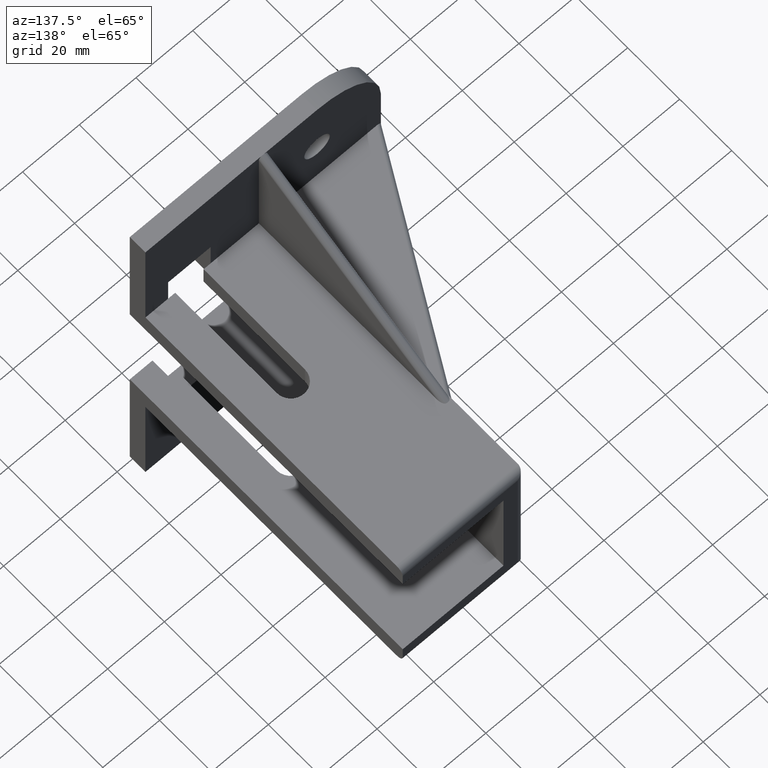
[diagram: clean part render]
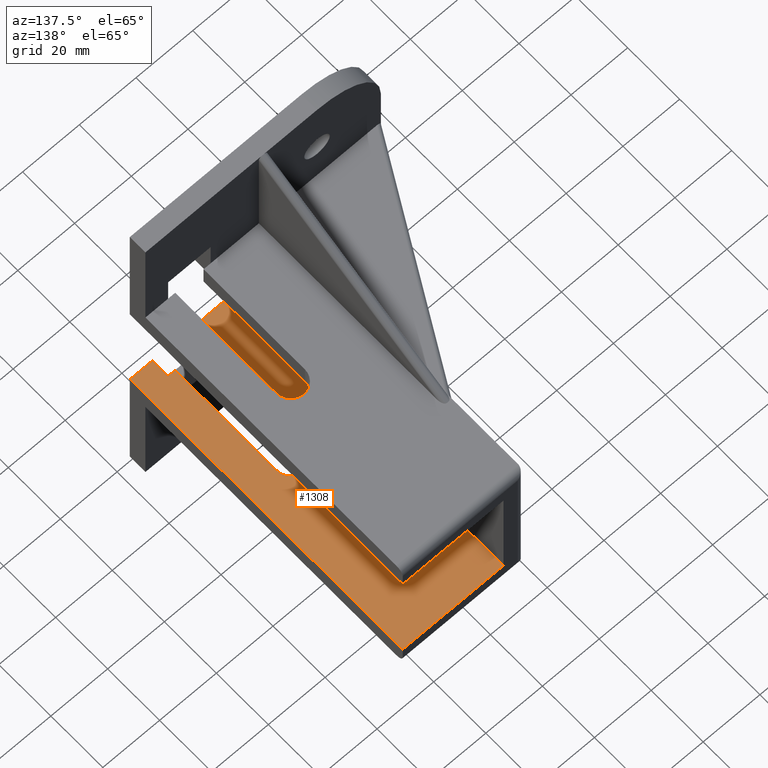
[diagram: same view with one face highlighted and labeled with its STEP entity id]
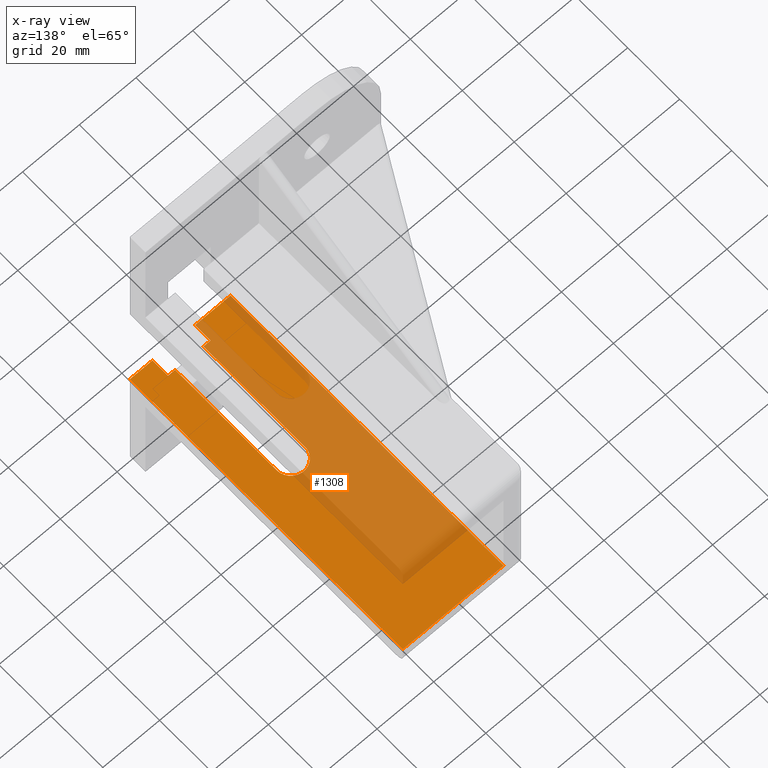
[diagram: x-ray of the same camera — body ghosted, the highlighted face saturated]
A machine part, auxiliary view. The second image highlights one B-rep face of the part: STEP entity #1308.
The next image is the same camera in x-ray: the body ghosted, the highlighted face saturated — about 45% of this face is hidden behind the body in this view.
In plain terms, the highlighted planar face has unit normal (0, 0, 1).
Its self-contained STEP definition (entity closure, byte-faithful):
#41=LINE('',#1873,#202);
#45=LINE('',#1881,#206);
#58=LINE('',#1907,#219);
#84=LINE('',#1974,#245);
#85=LINE('',#1975,#246);
#86=LINE('',#1977,#247);
#87=LINE('',#1979,#248);
#88=LINE('',#1981,#249);
#89=LINE('',#1985,#250);
#90=LINE('',#1987,#251);
#91=LINE('',#1988,#252);
#202=VECTOR('',#1501,8.00000000000001);
#206=VECTOR('',#1505,12.5);
#219=VECTOR('',#1520,105.);
#245=VECTOR('',#1568,105.);
#246=VECTOR('',#1569,35.5);
#247=VECTOR('',#1570,6.00000000000001);
#248=VECTOR('',#1571,2.5);
#249=VECTOR('',#1572,39.);
#250=VECTOR('',#1575,39.);
#251=VECTOR('',#1576,2.49999999999999);
#252=VECTOR('',#1577,6.00000000000001);
#362=PLANE('',#1393);
#421=FACE_OUTER_BOUND('',#494,.T.);
#494=EDGE_LOOP('',(#962,#963,#964,#965,#966,#967,#968,#969,#970,#971,#972,
#973));
#567=CIRCLE('',#1394,5.);
#586=VERTEX_POINT('',#1870);
#587=VERTEX_POINT('',#1872);
#590=VERTEX_POINT('',#1878);
#591=VERTEX_POINT('',#1880);
#603=VERTEX_POINT('',#1906);
#633=VERTEX_POINT('',#1973);
#634=VERTEX_POINT('',#1976);
#635=VERTEX_POINT('',#1978);
#636=VERTEX_POINT('',#1980);
#637=VERTEX_POINT('',#1982);
#638=VERTEX_POINT('',#1984);
#639=VERTEX_POINT('',#1986);
#710=EDGE_CURVE('',#586,#587,#41,.T.);
#714=EDGE_CURVE('',#590,#591,#45,.T.);
#727=EDGE_CURVE('',#603,#591,#58,.T.);
#761=EDGE_CURVE('',#633,#586,#84,.T.);
#762=EDGE_CURVE('',#633,#603,#85,.T.);
#763=EDGE_CURVE('',#590,#634,#86,.T.);
#764=EDGE_CURVE('',#635,#634,#87,.T.);
#765=EDGE_CURVE('',#635,#636,#88,.T.);
#766=EDGE_CURVE('',#636,#637,#567,.T.);
#767=EDGE_CURVE('',#637,#638,#89,.T.);
#768=EDGE_CURVE('',#639,#638,#90,.T.);
#769=EDGE_CURVE('',#587,#639,#91,.T.);
#962=ORIENTED_EDGE('',*,*,#761,.F.);
#963=ORIENTED_EDGE('',*,*,#762,.T.);
#964=ORIENTED_EDGE('',*,*,#727,.T.);
#965=ORIENTED_EDGE('',*,*,#714,.F.);
#966=ORIENTED_EDGE('',*,*,#763,.T.);
#967=ORIENTED_EDGE('',*,*,#764,.F.);
#968=ORIENTED_EDGE('',*,*,#765,.T.);
#969=ORIENTED_EDGE('',*,*,#766,.T.);
#970=ORIENTED_EDGE('',*,*,#767,.T.);
#971=ORIENTED_EDGE('',*,*,#768,.F.);
#972=ORIENTED_EDGE('',*,*,#769,.F.);
#973=ORIENTED_EDGE('',*,*,#710,.F.);
#1308=ADVANCED_FACE('',(#421),#362,.T.);
#1393=AXIS2_PLACEMENT_3D('',#1972,#1566,#1567);
#1394=AXIS2_PLACEMENT_3D('',#1983,#1573,#1574);
#1501=DIRECTION('',(-1.,0.,0.));
#1505=DIRECTION('',(-1.,0.,0.));
#1520=DIRECTION('',(0.,-1.,0.));
#1566=DIRECTION('center_axis',(0.,0.,1.));
#1567=DIRECTION('ref_axis',(1.,0.,0.));
#1568=DIRECTION('',(0.,-1.,0.));
#1569=DIRECTION('',(-1.,0.,-8.67361737988404E-17));
#1570=DIRECTION('',(0.,1.,0.));
#1571=DIRECTION('',(-1.,0.,-2.31296463463574E-16));
#1572=DIRECTION('',(9.6373526443156E-17,1.,0.));
#1573=DIRECTION('center_axis',(0.,0.,-1.));
#1574=DIRECTION('ref_axis',(1.,0.,0.));
#1575=DIRECTION('',(9.6373526443156E-17,-1.,0.));
#1576=DIRECTION('',(-1.,0.,-2.31296463463574E-16));
#1577=DIRECTION('',(0.,1.,0.));
#1870=CARTESIAN_POINT('',(15.5,0.,-20.));
#1872=CARTESIAN_POINT('',(7.5,-6.93889390390723E-15,-20.));
#1873=CARTESIAN_POINT('',(-20.,0.,-20.));
#1878=CARTESIAN_POINT('',(-7.50000000000001,-6.93889390390723E-15,-20.));
#1880=CARTESIAN_POINT('',(-20.,0.,-20.));
#1881=CARTESIAN_POINT('',(-20.,0.,-20.));
#1906=CARTESIAN_POINT('',(-20.,105.,-20.));
#1907=CARTESIAN_POINT('',(-20.,6.,-20.));
#1972=CARTESIAN_POINT('Origin',(-20.,6.,-20.));
#1973=CARTESIAN_POINT('',(15.5,105.,-20.));
#1974=CARTESIAN_POINT('',(15.5,6.,-20.));
#1975=CARTESIAN_POINT('',(20.,105.,-20.));
#1976=CARTESIAN_POINT('',(-7.50000000000001,6.,-20.));
#1977=CARTESIAN_POINT('',(-7.50000000000001,-23.0488611432322,-20.));
#1978=CARTESIAN_POINT('',(-5.,6.,-20.));
#1979=CARTESIAN_POINT('',(7.5,6.,-20.));
#1980=CARTESIAN_POINT('',(-5.,45.,-20.));
#1981=CARTESIAN_POINT('',(-5.,6.,-20.));
#1982=CARTESIAN_POINT('',(5.,45.,-20.));
#1983=CARTESIAN_POINT('Origin',(0.,45.,-20.));
#1984=CARTESIAN_POINT('',(5.,6.,-20.));
#1985=CARTESIAN_POINT('',(5.,6.,-20.));
#1986=CARTESIAN_POINT('',(7.5,6.,-20.));
#1987=CARTESIAN_POINT('',(7.5,6.,-20.));
#1988=CARTESIAN_POINT('',(7.5,-23.0488611432322,-20.));